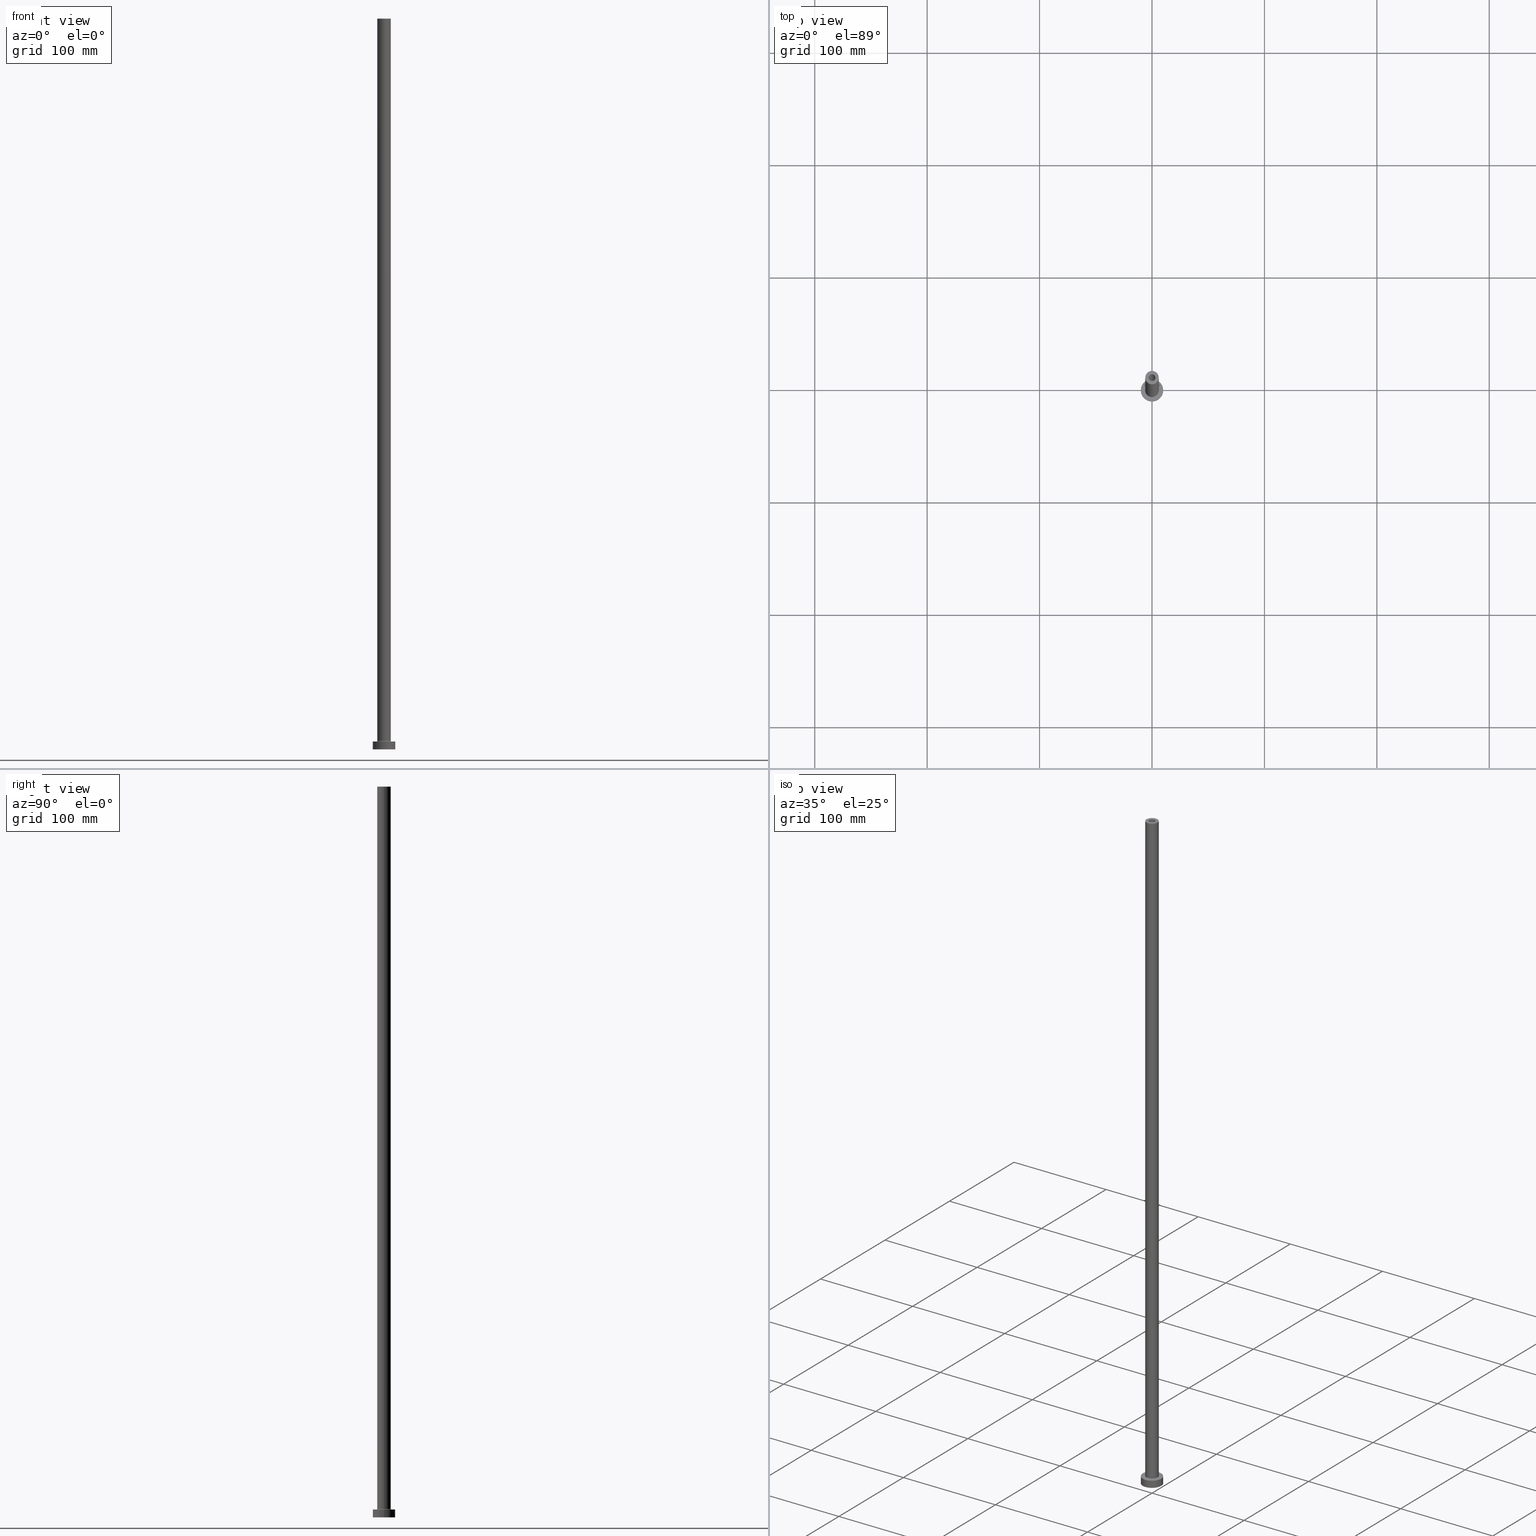
[diagram: canonical four-view strip — front | top / right | iso, engineering-drawing reading convention]
A machine part, canonical four-view strip (front | top / right | iso — engineering-drawing reading convention). The complete STEP part file that produces these views, byte-faithful:
ISO-10303-21;
HEADER;
FILE_DESCRIPTION (( 'STEP AP203' ),
    '1' );
FILE_NAME ('e7e1.STEP',
    '2023-02-13T14:59:17',
    ( '' ),
    ( '' ),
    'SwSTEP 2.0',
    'SolidWorks 2019',
    '' );
FILE_SCHEMA (( 'CONFIG_CONTROL_DESIGN' ));
ENDSEC;

DATA;
#1 = LINE ( 'NONE', #354, #49 ) ;
#2 = CC_DESIGN_PERSON_AND_ORGANIZATION_ASSIGNMENT ( #195, #54, ( #28 ) ) ;
#3 = DIRECTION ( 'NONE',  ( 0.000000000000000000, 0.000000000000000000, -1.000000000000000000 ) ) ;
#4 = APPROVAL ( #279, 'NEUR�EN�' ) ;
#5 = AXIS2_PLACEMENT_3D ( 'NONE', #397, #446, #24 ) ;
#6 = CARTESIAN_POINT ( 'NONE',  ( -6.000000000000000888, 0.000000000000000000, 7.499999999999951150 ) ) ;
#7 = VERTEX_POINT ( 'NONE', #267 ) ;
#8 = ADVANCED_FACE ( 'NONE', ( #301 ), #141, .F. ) ;
#9 = CARTESIAN_POINT ( 'NONE',  ( 0.000000000000000000, 0.000000000000000000, 613.9095454429503889 ) ) ;
#10 = ORIENTED_EDGE ( 'NONE', *, *, #260, .T. ) ;
#11 = VERTEX_POINT ( 'NONE', #367 ) ;
#12 = CARTESIAN_POINT ( 'NONE',  ( 0.000000000000000000, 0.000000000000000000, 605.0000000000000000 ) ) ;
#13 = ORIENTED_EDGE ( 'NONE', *, *, #96, .T. ) ;
#14 = MECHANICAL_CONTEXT ( 'NONE', #25, 'mechanical' ) ;
#15 = AXIS2_PLACEMENT_3D ( 'NONE', #425, #153, #151 ) ;
#16 = CARTESIAN_POINT ( 'NONE',  ( 0.000000000000000000, 0.000000000000000000, 650.0000000000000000 ) ) ;
#17 = CC_DESIGN_SECURITY_CLASSIFICATION ( #393, ( #183 ) ) ;
#18 = ORIENTED_EDGE ( 'NONE', *, *, #294, .T. ) ;
#19 = APPROVAL_DATE_TIME ( #366, #358 ) ;
#20 = CARTESIAN_POINT ( 'NONE',  ( 0.000000000000000000, 0.000000000000000000, 7.499999999999951150 ) ) ;
#21 = ADVANCED_FACE ( 'NONE', ( #59 ), #131, .F. ) ;
#22 = PERSON_AND_ORGANIZATION ( #332, #111 ) ;
#23 = CARTESIAN_POINT ( 'NONE',  ( 0.000000000000000000, 0.000000000000000000, 650.0000000000000000 ) ) ;
#24 = DIRECTION ( 'NONE',  ( 1.000000000000000000, 0.000000000000000000, -0.000000000000000000 ) ) ;
#25 = APPLICATION_CONTEXT ( 'configuration controlled 3d designs of mechanical parts and assemblies' ) ;
#26 = ORIENTED_EDGE ( 'NONE', *, *, #431, .T. ) ;
#27 = CIRCLE ( 'NONE', #156, 3.000000000000000444 ) ;
#28 = PRODUCT_DEFINITION ( 'NEZN�M�', '', #183, #387 ) ;
#29 = CARTESIAN_POINT ( 'NONE',  ( 0.000000000000000000, 0.000000000000000000, 7.499999999999951150 ) ) ;
#30 = VERTEX_POINT ( 'NONE', #401 ) ;
#31 = PLANE ( 'NONE',  #421 ) ;
#32 = DIRECTION ( 'NONE',  ( 0.000000000000000000, 0.000000000000000000, 1.000000000000000000 ) ) ;
#33 = VECTOR ( 'NONE', #155, 1000.000000000000000 ) ;
#34 = ORIENTED_EDGE ( 'NONE', *, *, #456, .T. ) ;
#35 = DIRECTION ( 'NONE',  ( 1.000000000000000000, 0.000000000000000000, 0.000000000000000000 ) ) ;
#36 = EDGE_LOOP ( 'NONE', ( #55, #265, #128, #100 ) ) ;
#37 = DIRECTION ( 'NONE',  ( -1.000000000000000000, 0.000000000000000000, 0.000000000000000000 ) ) ;
#38 = AXIS2_PLACEMENT_3D ( 'NONE', #60, #160, #62 ) ;
#39 = CYLINDRICAL_SURFACE ( 'NONE', #263, 10.00000000000000000 ) ;
#40 = CIRCLE ( 'NONE', #413, 6.000000000000000888 ) ;
#41 = EDGE_CURVE ( 'NONE', #53, #7, #451, .T. ) ;
#42 = LINE ( 'NONE', #290, #33 ) ;
#43 = DIRECTION ( 'NONE',  ( 1.000000000000000000, 0.000000000000000000, 0.000000000000000000 ) ) ;
#44 = EDGE_LOOP ( 'NONE', ( #240, #320, #13, #161 ) ) ;
#45 = CARTESIAN_POINT ( 'NONE',  ( 0.000000000000000000, 0.000000000000000000, 0.000000000000000000 ) ) ;
#46 = MANIFOLD_SOLID_BREP ( 'Odebrat vysunut�m4', #324 ) ;
#47 = ORIENTED_EDGE ( 'NONE', *, *, #449, .F. ) ;
#48 = EDGE_CURVE ( 'NONE', #30, #7, #98, .T. ) ;
#49 = VECTOR ( 'NONE', #147, 1000.000000000000000 ) ;
#50 = UNCERTAINTY_MEASURE_WITH_UNIT (LENGTH_MEASURE( 1.000000000000000082E-05 ), #256, 'distance_accuracy_value', 'NONE');
#51 = DIRECTION ( 'NONE',  ( -0.000000000000000000, -0.000000000000000000, -1.000000000000000000 ) ) ;
#52 = DIRECTION ( 'NONE',  ( 0.000000000000000000, 0.000000000000000000, 1.000000000000000000 ) ) ;
#53 = VERTEX_POINT ( 'NONE', #297 ) ;
#54 = PERSON_AND_ORGANIZATION_ROLE ( 'creator' ) ;
#55 = ORIENTED_EDGE ( 'NONE', *, *, #334, .T. ) ;
#56 = EDGE_CURVE ( 'NONE', #330, #359, #259, .T. ) ;
#57 = CARTESIAN_POINT ( 'NONE',  ( 0.000000000000000000, 0.000000000000000000, 0.000000000000000000 ) ) ;
#58 = CIRCLE ( 'NONE', #328, 0.5000000000000004441 ) ;
#59 = FACE_OUTER_BOUND ( 'NONE', #129, .T. ) ;
#60 = CARTESIAN_POINT ( 'NONE',  ( 0.000000000000000000, 0.000000000000000000, 0.000000000000000000 ) ) ;
#61 = VERTEX_POINT ( 'NONE', #168 ) ;
#62 = DIRECTION ( 'NONE',  ( 1.000000000000000000, 0.000000000000000000, 0.000000000000000000 ) ) ;
#63 = AXIS2_PLACEMENT_3D ( 'NONE', #23, #165, #447 ) ;
#64 = APPLICATION_PROTOCOL_DEFINITION ( 'international standard', 'config_control_design', 1994, #25 ) ;
#65 = DIRECTION ( 'NONE',  ( 0.000000000000000000, 0.000000000000000000, 1.000000000000000000 ) ) ;
#66 = AXIS2_PLACEMENT_3D ( 'NONE', #214, #390, #179 ) ;
#67 = LINE ( 'NONE', #77, #127 ) ;
#68 = ORIENTED_EDGE ( 'NONE', *, *, #302, .T. ) ;
#69 = DIRECTION ( 'NONE',  ( 1.000000000000000000, 0.000000000000000000, 0.000000000000000000 ) ) ;
#70 = CIRCLE ( 'NONE', #238, 6.500000000000000888 ) ;
#71 = EDGE_LOOP ( 'NONE', ( #170, #189 ) ) ;
#72 = EDGE_CURVE ( 'NONE', #422, #109, #70, .T. ) ;
#73 = CARTESIAN_POINT ( 'NONE',  ( 0.000000000000000000, 0.000000000000000000, 7.000000000000000000 ) ) ;
#74 = CIRCLE ( 'NONE', #15, 10.00000000000000000 ) ;
#75 = EDGE_LOOP ( 'NONE', ( #200, #234 ) ) ;
#76 = DIRECTION ( 'NONE',  ( 1.000000000000000000, 0.000000000000000000, 0.000000000000000000 ) ) ;
#77 = CARTESIAN_POINT ( 'NONE',  ( 3.000000000000000444, 3.673940397442060361E-16, 650.0000000000000000 ) ) ;
#78 = EDGE_CURVE ( 'NONE', #439, #11, #298, .T. ) ;
#79 = DIRECTION ( 'NONE',  ( 0.000000000000000000, -1.000000000000000000, 0.000000000000000000 ) ) ;
#80 = AXIS2_PLACEMENT_3D ( 'NONE', #455, #144, #76 ) ;
#81 = LOCAL_TIME ( 15, 59, 17.00000000000000000, #382 ) ;
#82 = LINE ( 'NONE', #288, #391 ) ;
#83 = CARTESIAN_POINT ( 'NONE',  ( 6.000000000000000888, 7.347880794884120722E-16, 650.0000000000000000 ) ) ;
#84 = ORIENTED_EDGE ( 'NONE', *, *, #260, .F. ) ;
#85 = CYLINDRICAL_SURFACE ( 'NONE', #66, 6.000000000000000888 ) ;
#86 = EDGE_LOOP ( 'NONE', ( #325, #396, #274, #203 ) ) ;
#87 = CARTESIAN_POINT ( 'NONE',  ( 0.000000000000000000, 0.000000000000000000, 7.000000000000000000 ) ) ;
#88 = ORIENTED_EDGE ( 'NONE', *, *, #302, .F. ) ;
#89 = DIRECTION ( 'NONE',  ( 0.000000000000000000, 0.000000000000000000, 1.000000000000000000 ) ) ;
#90 = COORDINATED_UNIVERSAL_TIME_OFFSET ( 1, 0, .AHEAD. ) ;
#91 = ORIENTED_EDGE ( 'NONE', *, *, #370, .T. ) ;
#92 = DIRECTION ( 'NONE',  ( 0.000000000000000000, 0.000000000000000000, 1.000000000000000000 ) ) ;
#93 = AXIS2_PLACEMENT_3D ( 'NONE', #115, #79, #246 ) ;
#94 = DIRECTION ( 'NONE',  ( 1.000000000000000000, 0.000000000000000000, 0.000000000000000000 ) ) ;
#95 = COORDINATED_UNIVERSAL_TIME_OFFSET ( 1, 0, .AHEAD. ) ;
#96 = EDGE_CURVE ( 'NONE', #305, #330, #268, .T. ) ;
#97 = DIRECTION ( 'NONE',  ( 1.000000000000000000, 0.000000000000000000, 0.000000000000000000 ) ) ;
#98 = LINE ( 'NONE', #194, #148 ) ;
#99 = PRODUCT ( 'e7e1', 'e7e1', '', ( #14 ) ) ;
#100 = ORIENTED_EDGE ( 'NONE', *, *, #96, .F. ) ;
#101 = DIRECTION ( 'NONE',  ( 1.000000000000000000, 0.000000000000000000, 0.000000000000000000 ) ) ;
#102 = VECTOR ( 'NONE', #210, 1000.000000000000000 ) ;
#103 = ORIENTED_EDGE ( 'NONE', *, *, #150, .F. ) ;
#104 = CARTESIAN_POINT ( 'NONE',  ( 0.000000000000000000, 0.000000000000000000, 613.9095454429503889 ) ) ;
#105 = EDGE_CURVE ( 'NONE', #220, #322, #417, .T. ) ;
#106 = EDGE_LOOP ( 'NONE', ( #251, #10, #264, #438 ) ) ;
#107 = DIRECTION ( 'NONE',  ( 1.000000000000000000, 0.000000000000000000, -0.000000000000000000 ) ) ;
#108 = AXIS2_PLACEMENT_3D ( 'NONE', #404, #196, #94 ) ;
#109 = VERTEX_POINT ( 'NONE', #191 ) ;
#110 = CARTESIAN_POINT ( 'NONE',  ( 0.000000000000000000, 0.000000000000000000, 650.0000000000000000 ) ) ;
#111 = ORGANIZATION ( 'NEUR�EN�', 'NEUR�EN�', '' ) ;
#112 = DIRECTION ( 'NONE',  ( 0.000000000000000000, 0.000000000000000000, 1.000000000000000000 ) ) ;
#113 = ADVANCED_FACE ( 'NONE', ( #306 ), #411, .T. ) ;
#114 = CARTESIAN_POINT ( 'NONE',  ( -6.500000000000000888, 7.960204194457796463E-16, 7.499999999999951150 ) ) ;
#115 = CARTESIAN_POINT ( 'NONE',  ( 6.500000000000000888, 0.000000000000000000, 7.499999999999951150 ) ) ;
#116 = AXIS2_PLACEMENT_3D ( 'NONE', #173, #457, #243 ) ;
#117 = DIRECTION ( 'NONE',  ( 0.000000000000000000, 0.000000000000000000, -1.000000000000000000 ) ) ;
#118 = FACE_OUTER_BOUND ( 'NONE', #187, .T. ) ;
#119 = FACE_OUTER_BOUND ( 'NONE', #373, .T. ) ;
#120 = CIRCLE ( 'NONE', #177, 3.150000000000000355 ) ;
#121 = CARTESIAN_POINT ( 'NONE',  ( 0.000000000000000000, 0.000000000000000000, 605.0000000000000000 ) ) ;
#122 = LINE ( 'NONE', #369, #319 ) ;
#123 = DIRECTION ( 'NONE',  ( 0.000000000000000000, 0.000000000000000000, -1.000000000000000000 ) ) ;
#124 = SECURITY_CLASSIFICATION_LEVEL ( 'unclassified' ) ;
#125 = ORIENTED_EDGE ( 'NONE', *, *, #402, .F. ) ;
#126 = DATE_TIME_ROLE ( 'creation_date' ) ;
#127 = VECTOR ( 'NONE', #176, 1000.000000000000000 ) ;
#128 = ORIENTED_EDGE ( 'NONE', *, *, #56, .F. ) ;
#129 = EDGE_LOOP ( 'NONE', ( #84, #232, #258, #132 ) ) ;
#130 = CARTESIAN_POINT ( 'NONE',  ( -3.000000000000000444, 0.000000000000000000, 650.0000000000000000 ) ) ;
#131 = TOROIDAL_SURFACE ( 'NONE', #389, 6.500000000000000888, 0.5000000000000000000 ) ;
#132 = ORIENTED_EDGE ( 'NONE', *, *, #72, .F. ) ;
#133 = PLANE ( 'NONE',  #276 ) ;
#134 = AXIS2_PLACEMENT_3D ( 'NONE', #12, #52, #285 ) ;
#135 = LOCAL_TIME ( 15, 59, 17.00000000000000000, #190 ) ;
#136 = CC_DESIGN_DATE_AND_TIME_ASSIGNMENT ( #327, #126, ( #28 ) ) ;
#137 = APPLICATION_CONTEXT ( 'configuration controlled 3d designs of mechanical parts and assemblies' ) ;
#138 = VERTEX_POINT ( 'NONE', #209 ) ;
#139 = DIRECTION ( 'NONE',  ( 1.224646799147353207E-16, 1.000000000000000000, -0.000000000000000000 ) ) ;
#140 = CARTESIAN_POINT ( 'NONE',  ( -10.00000000000000000, 0.000000000000000000, 7.000000000000000000 ) ) ;
#141 = TOROIDAL_SURFACE ( 'NONE', #284, 6.500000000000000888, 0.5000000000000000000 ) ;
#142 = EDGE_LOOP ( 'NONE', ( #236, #182 ) ) ;
#143 = ADVANCED_FACE ( 'NONE', ( #348, #424 ), #133, .T. ) ;
#144 = DIRECTION ( 'NONE',  ( 0.000000000000000000, 0.000000000000000000, 1.000000000000000000 ) ) ;
#145 = AXIS2_PLACEMENT_3D ( 'NONE', #410, #89, #97 ) ;
#146 = DIRECTION ( 'NONE',  ( -1.000000000000000000, 0.000000000000000000, 0.000000000000000000 ) ) ;
#147 = DIRECTION ( 'NONE',  ( -0.000000000000000000, -0.000000000000000000, -1.000000000000000000 ) ) ;
#148 = VECTOR ( 'NONE', #123, 1000.000000000000000 ) ;
#149 = DIRECTION ( 'NONE',  ( 0.000000000000000000, 0.000000000000000000, -1.000000000000000000 ) ) ;
#150 = EDGE_CURVE ( 'NONE', #220, #356, #282, .T. ) ;
#151 = DIRECTION ( 'NONE',  ( 1.000000000000000000, 0.000000000000000000, 0.000000000000000000 ) ) ;
#152 = VERTEX_POINT ( 'NONE', #383 ) ;
#153 = DIRECTION ( 'NONE',  ( 0.000000000000000000, 0.000000000000000000, 1.000000000000000000 ) ) ;
#154 = APPROVAL ( #448, 'NEUR�EN�' ) ;
#155 = DIRECTION ( 'NONE',  ( -0.000000000000000000, -0.000000000000000000, -1.000000000000000000 ) ) ;
#156 = AXIS2_PLACEMENT_3D ( 'NONE', #178, #291, #43 ) ;
#157 = EDGE_LOOP ( 'NONE', ( #346, #303 ) ) ;
#158 = APPLICATION_PROTOCOL_DEFINITION ( 'international standard', 'config_control_design', 1994, #137 ) ;
#159 = CC_DESIGN_PERSON_AND_ORGANIZATION_ASSIGNMENT ( #296, #304, ( #183 ) ) ;
#160 = DIRECTION ( 'NONE',  ( -0.000000000000000000, -0.000000000000000000, -1.000000000000000000 ) ) ;
#161 = ORIENTED_EDGE ( 'NONE', *, *, #370, .F. ) ;
#162 = PERSON_AND_ORGANIZATION ( #332, #111 ) ;
#163 = VECTOR ( 'NONE', #231, 1000.000000000000000 ) ;
#164 = CALENDAR_DATE ( 2023, 13, 2 ) ;
#165 = DIRECTION ( 'NONE',  ( 0.000000000000000000, 0.000000000000000000, 1.000000000000000000 ) ) ;
#166 = ORIENTED_EDGE ( 'NONE', *, *, #48, .F. ) ;
#167 = CIRCLE ( 'NONE', #93, 0.5000000000000004441 ) ;
#168 = CARTESIAN_POINT ( 'NONE',  ( 6.000000000000000888, 7.347880794884120722E-16, 7.499999999999951150 ) ) ;
#169 = DIRECTION ( 'NONE',  ( 1.000000000000000000, 0.000000000000000000, 0.000000000000000000 ) ) ;
#170 = ORIENTED_EDGE ( 'NONE', *, *, #334, .F. ) ;
#171 = DIRECTION ( 'NONE',  ( 1.000000000000000000, 0.000000000000000000, -0.000000000000000000 ) ) ;
#172 = CARTESIAN_POINT ( 'NONE',  ( 0.000000000000000000, 0.000000000000000000, 650.0000000000000000 ) ) ;
#173 = CARTESIAN_POINT ( 'NONE',  ( 0.000000000000000000, 0.000000000000000000, 0.000000000000000000 ) ) ;
#174 = CARTESIAN_POINT ( 'NONE',  ( 0.000000000000000000, 0.000000000000000000, 0.000000000000000000 ) ) ;
#175 = AXIS2_PLACEMENT_3D ( 'NONE', #376, #65, #169 ) ;
#176 = DIRECTION ( 'NONE',  ( 0.000000000000000000, 0.000000000000000000, -1.000000000000000000 ) ) ;
#177 = AXIS2_PLACEMENT_3D ( 'NONE', #201, #416, #69 ) ;
#178 = CARTESIAN_POINT ( 'NONE',  ( 0.000000000000000000, 0.000000000000000000, 650.0000000000000000 ) ) ;
#179 = DIRECTION ( 'NONE',  ( -1.000000000000000000, 0.000000000000000000, 0.000000000000000000 ) ) ;
#180 = EDGE_CURVE ( 'NONE', #379, #61, #270, .T. ) ;
#181 = CARTESIAN_POINT ( 'NONE',  ( 3.000000000000000444, 3.673940397442060361E-16, 605.0000000000000000 ) ) ;
#182 = ORIENTED_EDGE ( 'NONE', *, *, #72, .T. ) ;
#183 = PRODUCT_DEFINITION_FORMATION_WITH_SPECIFIED_SOURCE ( 'LIBOVOLN�', '', #99, .NOT_KNOWN. ) ;
#184 = CARTESIAN_POINT ( 'NONE',  ( -3.150000000000000355, 0.000000000000000000, 605.0000000000000000 ) ) ;
#185 = ORIENTED_EDGE ( 'NONE', *, *, #224, .T. ) ;
#186 = EDGE_CURVE ( 'NONE', #138, #356, #248, .T. ) ;
#187 = EDGE_LOOP ( 'NONE', ( #208, #88 ) ) ;
#188 = DIRECTION ( 'NONE',  ( 1.000000000000000000, 0.000000000000000000, 0.000000000000000000 ) ) ;
#189 = ORIENTED_EDGE ( 'NONE', *, *, #207, .F. ) ;
#190 = COORDINATED_UNIVERSAL_TIME_OFFSET ( 1, 0, .AHEAD. ) ;
#191 = CARTESIAN_POINT ( 'NONE',  ( 6.500000000000000888, 0.000000000000000000, 6.999999999999975131 ) ) ;
#192 = AXIS2_PLACEMENT_3D ( 'NONE', #353, #112, #202 ) ;
#193 = ORIENTED_EDGE ( 'NONE', *, *, #41, .T. ) ;
#194 = CARTESIAN_POINT ( 'NONE',  ( 3.150000000000000355, 3.857637417314163182E-16, 613.9095454429503889 ) ) ;
#195 = PERSON_AND_ORGANIZATION ( #332, #111 ) ;
#196 = DIRECTION ( 'NONE',  ( 0.000000000000000000, 0.000000000000000000, 1.000000000000000000 ) ) ;
#197 = EDGE_LOOP ( 'NONE', ( #185, #278, #26, #125 ) ) ;
#198 = LOCAL_TIME ( 15, 59, 17.00000000000000000, #329 ) ;
#199 = LOCAL_TIME ( 15, 59, 17.00000000000000000, #90 ) ;
#200 = ORIENTED_EDGE ( 'NONE', *, *, #456, .F. ) ;
#201 = CARTESIAN_POINT ( 'NONE',  ( 0.000000000000000000, 0.000000000000000000, 605.0000000000000000 ) ) ;
#202 = DIRECTION ( 'NONE',  ( 1.000000000000000000, 0.000000000000000000, 0.000000000000000000 ) ) ;
#203 = ORIENTED_EDGE ( 'NONE', *, *, #180, .T. ) ;
#204 = DATE_AND_TIME ( #228, #460 ) ;
#205 = CIRCLE ( 'NONE', #223, 3.150000000000000355 ) ;
#206 = DIRECTION ( 'NONE',  ( -0.000000000000000000, -0.000000000000000000, -1.000000000000000000 ) ) ;
#207 = EDGE_CURVE ( 'NONE', #152, #305, #361, .T. ) ;
#208 = ORIENTED_EDGE ( 'NONE', *, *, #224, .F. ) ;
#209 = CARTESIAN_POINT ( 'NONE',  ( 10.00000000000000000, 1.224646799147353256E-15, 0.000000000000000000 ) ) ;
#210 = DIRECTION ( 'NONE',  ( -0.000000000000000000, -0.000000000000000000, -1.000000000000000000 ) ) ;
#211 = CARTESIAN_POINT ( 'NONE',  ( 0.000000000000000000, 0.000000000000000000, 650.0000000000000000 ) ) ;
#212 = ADVANCED_FACE ( 'NONE', ( #281, #312 ), #277, .F. ) ;
#213 = FACE_OUTER_BOUND ( 'NONE', #44, .T. ) ;
#214 = CARTESIAN_POINT ( 'NONE',  ( 0.000000000000000000, 0.000000000000000000, 650.0000000000000000 ) ) ;
#215 = EDGE_LOOP ( 'NONE', ( #47, #381, #442, #34 ) ) ;
#216 = CYLINDRICAL_SURFACE ( 'NONE', #308, 10.00000000000000000 ) ;
#217 = ADVANCED_FACE ( 'NONE', ( #244 ), #39, .T. ) ;
#218 = AXIS2_PLACEMENT_3D ( 'NONE', #73, #206, #35 ) ;
#219 = FACE_OUTER_BOUND ( 'NONE', #336, .T. ) ;
#220 = VERTEX_POINT ( 'NONE', #314 ) ;
#221 = APPROVAL_ROLE ( '' ) ;
#222 = CALENDAR_DATE ( 2023, 13, 2 ) ;
#223 = AXIS2_PLACEMENT_3D ( 'NONE', #45, #395, #318 ) ;
#224 = EDGE_CURVE ( 'NONE', #406, #30, #120, .T. ) ;
#225 = CALENDAR_DATE ( 2023, 13, 2 ) ;
#226 = CARTESIAN_POINT ( 'NONE',  ( 0.000000000000000000, 0.000000000000000000, 7.000000000000000000 ) ) ;
#227 = EDGE_LOOP ( 'NONE', ( #365, #269, #414, #429 ) ) ;
#228 = CALENDAR_DATE ( 2023, 13, 2 ) ;
#229 = DIRECTION ( 'NONE',  ( 1.000000000000000000, 0.000000000000000000, 0.000000000000000000 ) ) ;
#230 = DATE_AND_TIME ( #225, #198 ) ;
#231 = DIRECTION ( 'NONE',  ( 0.000000000000000000, 0.000000000000000000, -1.000000000000000000 ) ) ;
#232 = ORIENTED_EDGE ( 'NONE', *, *, #363, .F. ) ;
#233 = CC_DESIGN_PERSON_AND_ORGANIZATION_ASSIGNMENT ( #162, #300, ( #183 ) ) ;
#234 = ORIENTED_EDGE ( 'NONE', *, *, #186, .F. ) ;
#235 = FACE_OUTER_BOUND ( 'NONE', #36, .T. ) ;
#236 = ORIENTED_EDGE ( 'NONE', *, *, #287, .T. ) ;
#237 = EDGE_CURVE ( 'NONE', #152, #359, #67, .T. ) ;
#238 = AXIS2_PLACEMENT_3D ( 'NONE', #226, #333, #101 ) ;
#239 = FACE_OUTER_BOUND ( 'NONE', #197, .T. ) ;
#240 = ORIENTED_EDGE ( 'NONE', *, *, #237, .F. ) ;
#241 = CIRCLE ( 'NONE', #134, 3.000000000000000444 ) ;
#242 = DIRECTION ( 'NONE',  ( 0.000000000000000000, 0.000000000000000000, 1.000000000000000000 ) ) ;
#243 = DIRECTION ( 'NONE',  ( 1.000000000000000000, 0.000000000000000000, -0.000000000000000000 ) ) ;
#244 = FACE_OUTER_BOUND ( 'NONE', #215, .T. ) ;
#245 = ADVANCED_FACE ( 'NONE', ( #239 ), #307, .F. ) ;
#246 = DIRECTION ( 'NONE',  ( 0.000000000000000000, 0.000000000000000000, -1.000000000000000000 ) ) ;
#247 = AXIS2_PLACEMENT_3D ( 'NONE', #110, #242, #435 ) ;
#248 = CIRCLE ( 'NONE', #459, 10.00000000000000000 ) ;
#249 = APPROVAL_PERSON_ORGANIZATION ( #400, #358, #437 ) ;
#250 = CARTESIAN_POINT ( 'NONE',  ( -6.500000000000000888, 7.960204194457796463E-16, 6.999999999999975131 ) ) ;
#251 = ORIENTED_EDGE ( 'NONE', *, *, #180, .F. ) ;
#252 = PLANE ( 'NONE',  #5 ) ;
#253 = CYLINDRICAL_SURFACE ( 'NONE', #426, 3.000000000000000444 ) ;
#254 = CIRCLE ( 'NONE', #218, 6.500000000000000888 ) ;
#255 = ORIENTED_EDGE ( 'NONE', *, *, #449, .T. ) ;
#256 =( LENGTH_UNIT ( ) NAMED_UNIT ( * ) SI_UNIT ( .MILLI., .METRE. ) );
#257 = PERSON_AND_ORGANIZATION ( #332, #111 ) ;
#258 = ORIENTED_EDGE ( 'NONE', *, *, #394, .T. ) ;
#259 = CIRCLE ( 'NONE', #108, 3.000000000000000444 ) ;
#260 = EDGE_CURVE ( 'NONE', #379, #422, #58, .T. ) ;
#261 = PERSON_AND_ORGANIZATION ( #332, #111 ) ;
#262 = ORIENTED_EDGE ( 'NONE', *, *, #402, .T. ) ;
#263 = AXIS2_PLACEMENT_3D ( 'NONE', #388, #344, #37 ) ;
#264 = ORIENTED_EDGE ( 'NONE', *, *, #287, .F. ) ;
#265 = ORIENTED_EDGE ( 'NONE', *, *, #237, .T. ) ;
#266 = ADVANCED_FACE ( 'NONE', ( #420, #342 ), #31, .T. ) ;
#267 = CARTESIAN_POINT ( 'NONE',  ( 3.150000000000000355, 3.857637417314163182E-16, 0.000000000000000000 ) ) ;
#268 = LINE ( 'NONE', #130, #163 ) ;
#269 = ORIENTED_EDGE ( 'NONE', *, *, #317, .T. ) ;
#270 = CIRCLE ( 'NONE', #192, 6.000000000000000888 ) ;
#271 = DIRECTION ( 'NONE',  ( 0.000000000000000000, 0.000000000000000000, 1.000000000000000000 ) ) ;
#272 = DIRECTION ( 'NONE',  ( -1.000000000000000000, 0.000000000000000000, 0.000000000000000000 ) ) ;
#273 = ADVANCED_FACE ( 'NONE', ( #235 ), #452, .F. ) ;
#274 = ORIENTED_EDGE ( 'NONE', *, *, #310, .T. ) ;
#275 = APPROVAL_ROLE ( '' ) ;
#276 = AXIS2_PLACEMENT_3D ( 'NONE', #461, #271, #107 ) ;
#277 = PLANE ( 'NONE',  #116 ) ;
#278 = ORIENTED_EDGE ( 'NONE', *, *, #48, .T. ) ;
#279 = APPROVAL_STATUS ( 'not_yet_approved' ) ;
#280 = CIRCLE ( 'NONE', #292, 10.00000000000000000 ) ;
#281 = FACE_BOUND ( 'NONE', #157, .T. ) ;
#282 = LINE ( 'NONE', #140, #102 ) ;
#283 = CARTESIAN_POINT ( 'NONE',  ( 0.000000000000000000, 0.000000000000000000, 7.499999999999951150 ) ) ;
#284 = AXIS2_PLACEMENT_3D ( 'NONE', #29, #409, #229 ) ;
#285 = DIRECTION ( 'NONE',  ( 1.000000000000000000, 0.000000000000000000, 0.000000000000000000 ) ) ;
#286 = CC_DESIGN_APPROVAL ( #154, ( #28 ) ) ;
#287 = EDGE_CURVE ( 'NONE', #109, #422, #254, .T. ) ;
#288 = CARTESIAN_POINT ( 'NONE',  ( -3.150000000000000355, 0.000000000000000000, 613.9095454429503889 ) ) ;
#289 = EDGE_LOOP ( 'NONE', ( #18, #339 ) ) ;
#290 = CARTESIAN_POINT ( 'NONE',  ( 6.000000000000000888, 7.347880794884120722E-16, 650.0000000000000000 ) ) ;
#291 = DIRECTION ( 'NONE',  ( 0.000000000000000000, 0.000000000000000000, 1.000000000000000000 ) ) ;
#292 = AXIS2_PLACEMENT_3D ( 'NONE', #57, #92, #372 ) ;
#293 = ORIENTED_EDGE ( 'NONE', *, *, #186, .T. ) ;
#294 = EDGE_CURVE ( 'NONE', #11, #439, #345, .T. ) ;
#295 = EDGE_LOOP ( 'NONE', ( #445, #340 ) ) ;
#296 = PERSON_AND_ORGANIZATION ( #332, #111 ) ;
#297 = CARTESIAN_POINT ( 'NONE',  ( -3.150000000000000355, 0.000000000000000000, 0.000000000000000000 ) ) ;
#298 = CIRCLE ( 'NONE', #63, 6.000000000000000888 ) ;
#299 = PRODUCT_DEFINITION_SHAPE ( 'NONE', 'NONE',  #28 ) ;
#300 = PERSON_AND_ORGANIZATION_ROLE ( 'creator' ) ;
#301 = FACE_OUTER_BOUND ( 'NONE', #106, .T. ) ;
#302 = EDGE_CURVE ( 'NONE', #30, #406, #377, .T. ) ;
#303 = ORIENTED_EDGE ( 'NONE', *, *, #431, .F. ) ;
#304 = PERSON_AND_ORGANIZATION_ROLE ( 'design_supplier' ) ;
#305 = VERTEX_POINT ( 'NONE', #392 ) ;
#306 = FACE_OUTER_BOUND ( 'NONE', #86, .T. ) ;
#307 = CYLINDRICAL_SURFACE ( 'NONE', #453, 3.150000000000000355 ) ;
#308 = AXIS2_PLACEMENT_3D ( 'NONE', #87, #51, #316 ) ;
#309 = DIRECTION ( 'NONE',  ( 0.000000000000000000, 0.000000000000000000, -1.000000000000000000 ) ) ;
#310 = EDGE_CURVE ( 'NONE', #11, #379, #1, .T. ) ;
#311 = DIRECTION ( 'NONE',  ( 0.000000000000000000, 0.000000000000000000, 1.000000000000000000 ) ) ;
#312 = FACE_OUTER_BOUND ( 'NONE', #75, .T. ) ;
#313 = PERSON_AND_ORGANIZATION ( #332, #111 ) ;
#314 = CARTESIAN_POINT ( 'NONE',  ( -10.00000000000000000, 0.000000000000000000, 7.000000000000000000 ) ) ;
#315 = FACE_OUTER_BOUND ( 'NONE', #227, .T. ) ;
#316 = DIRECTION ( 'NONE',  ( -1.000000000000000000, 0.000000000000000000, 0.000000000000000000 ) ) ;
#317 = EDGE_CURVE ( 'NONE', #439, #61, #42, .T. ) ;
#318 = DIRECTION ( 'NONE',  ( 1.000000000000000000, 0.000000000000000000, 0.000000000000000000 ) ) ;
#319 = VECTOR ( 'NONE', #375, 1000.000000000000000 ) ;
#320 = ORIENTED_EDGE ( 'NONE', *, *, #207, .T. ) ;
#321 = DIRECTION ( 'NONE',  ( -1.000000000000000000, 0.000000000000000000, 0.000000000000000000 ) ) ;
#322 = VERTEX_POINT ( 'NONE', #430 ) ;
#323 = DIRECTION ( 'NONE',  ( 1.000000000000000000, 0.000000000000000000, 0.000000000000000000 ) ) ;
#324 = CLOSED_SHELL ( 'NONE', ( #273, #245, #8, #351, #380, #217, #143, #212, #113, #266, #21, #419, #440, #412 ) ) ;
#325 = ORIENTED_EDGE ( 'NONE', *, *, #317, .F. ) ;
#326 = CC_DESIGN_PERSON_AND_ORGANIZATION_ASSIGNMENT ( #257, #441, ( #99 ) ) ;
#327 = DATE_AND_TIME ( #164, #135 ) ;
#328 = AXIS2_PLACEMENT_3D ( 'NONE', #114, #139, #415 ) ;
#329 = COORDINATED_UNIVERSAL_TIME_OFFSET ( 1, 0, .AHEAD. ) ;
#330 = VERTEX_POINT ( 'NONE', #398 ) ;
#331 =( NAMED_UNIT ( * ) PLANE_ANGLE_UNIT ( ) SI_UNIT ( $, .RADIAN. ) );
#332 = PERSON ( 'NEUR�EN�', 'NEUR�EN�', 'NEUR�EN�', ('NEUR�EN�'), ('NEUR�EN�'), ('NEUR�EN�') ) ;
#333 = DIRECTION ( 'NONE',  ( -0.000000000000000000, -0.000000000000000000, -1.000000000000000000 ) ) ;
#334 = EDGE_CURVE ( 'NONE', #305, #152, #27, .T. ) ;
#335 =( NAMED_UNIT ( * ) SI_UNIT ( $, .STERADIAN. ) SOLID_ANGLE_UNIT ( ) );
#336 = EDGE_LOOP ( 'NONE', ( #166, #68, #262, #193 ) ) ;
#337 = AXIS2_PLACEMENT_3D ( 'NONE', #172, #309, #272 ) ;
#338 = APPROVAL_DATE_TIME ( #230, #154 ) ;
#339 = ORIENTED_EDGE ( 'NONE', *, *, #78, .T. ) ;
#340 = ORIENTED_EDGE ( 'NONE', *, *, #386, .T. ) ;
#341 = CALENDAR_DATE ( 2023, 13, 2 ) ;
#342 = FACE_OUTER_BOUND ( 'NONE', #289, .T. ) ;
#343 = EDGE_LOOP ( 'NONE', ( #434, #91 ) ) ;
#344 = DIRECTION ( 'NONE',  ( -0.000000000000000000, -0.000000000000000000, -1.000000000000000000 ) ) ;
#345 = CIRCLE ( 'NONE', #247, 6.000000000000000888 ) ;
#346 = ORIENTED_EDGE ( 'NONE', *, *, #41, .F. ) ;
#347 = SHAPE_DEFINITION_REPRESENTATION ( #299, #418 ) ;
#348 = FACE_BOUND ( 'NONE', #142, .T. ) ;
#349 = APPROVAL_DATE_TIME ( #352, #4 ) ;
#350 = DIRECTION ( 'NONE',  ( 1.000000000000000000, 0.000000000000000000, 0.000000000000000000 ) ) ;
#351 = ADVANCED_FACE ( 'NONE', ( #315 ), #85, .T. ) ;
#352 = DATE_AND_TIME ( #341, #81 ) ;
#353 = CARTESIAN_POINT ( 'NONE',  ( 0.000000000000000000, 0.000000000000000000, 7.499999999999951150 ) ) ;
#354 = CARTESIAN_POINT ( 'NONE',  ( -6.000000000000000888, 0.000000000000000000, 650.0000000000000000 ) ) ;
#355 = DIRECTION ( 'NONE',  ( 0.000000000000000000, 0.000000000000000000, 1.000000000000000000 ) ) ;
#356 = VERTEX_POINT ( 'NONE', #432 ) ;
#357 = FACE_BOUND ( 'NONE', #343, .T. ) ;
#358 = APPROVAL ( #408, 'NEUR�EN�' ) ;
#359 = VERTEX_POINT ( 'NONE', #181 ) ;
#360 = DIRECTION ( 'NONE',  ( 0.000000000000000000, 0.000000000000000000, 1.000000000000000000 ) ) ;
#361 = CIRCLE ( 'NONE', #80, 3.000000000000000444 ) ;
#362 = DIRECTION ( 'NONE',  ( -1.000000000000000000, 0.000000000000000000, 0.000000000000000000 ) ) ;
#363 = EDGE_CURVE ( 'NONE', #61, #379, #40, .T. ) ;
#364 = CC_DESIGN_DATE_AND_TIME_ASSIGNMENT ( #204, #378, ( #393 ) ) ;
#365 = ORIENTED_EDGE ( 'NONE', *, *, #78, .F. ) ;
#366 = DATE_AND_TIME ( #222, #199 ) ;
#367 = CARTESIAN_POINT ( 'NONE',  ( -6.000000000000000888, 0.000000000000000000, 650.0000000000000000 ) ) ;
#368 = AXIS2_PLACEMENT_3D ( 'NONE', #121, #355, #323 ) ;
#369 = CARTESIAN_POINT ( 'NONE',  ( 10.00000000000000000, 1.224646799147353256E-15, 7.000000000000000000 ) ) ;
#370 = EDGE_CURVE ( 'NONE', #359, #330, #241, .T. ) ;
#371 = DIRECTION ( 'NONE',  ( 0.000000000000000000, 0.000000000000000000, 1.000000000000000000 ) ) ;
#372 = DIRECTION ( 'NONE',  ( 1.000000000000000000, 0.000000000000000000, 0.000000000000000000 ) ) ;
#373 = EDGE_LOOP ( 'NONE', ( #436, #255, #293, #103 ) ) ;
#374 = PRODUCT_RELATED_PRODUCT_CATEGORY ( 'detail', '', ( #99 ) ) ;
#375 = DIRECTION ( 'NONE',  ( -0.000000000000000000, -0.000000000000000000, -1.000000000000000000 ) ) ;
#376 = CARTESIAN_POINT ( 'NONE',  ( 0.000000000000000000, 0.000000000000000000, 7.000000000000000000 ) ) ;
#377 = CIRCLE ( 'NONE', #368, 3.150000000000000355 ) ;
#378 = DATE_TIME_ROLE ( 'classification_date' ) ;
#379 = VERTEX_POINT ( 'NONE', #6 ) ;
#380 = ADVANCED_FACE ( 'NONE', ( #119 ), #216, .T. ) ;
#381 = ORIENTED_EDGE ( 'NONE', *, *, #105, .F. ) ;
#382 = COORDINATED_UNIVERSAL_TIME_OFFSET ( 1, 0, .AHEAD. ) ;
#383 = CARTESIAN_POINT ( 'NONE',  ( 3.000000000000000444, 3.673940397442060361E-16, 650.0000000000000000 ) ) ;
#384 = DIRECTION ( 'NONE',  ( 0.000000000000000000, 0.000000000000000000, -1.000000000000000000 ) ) ;
#385 = DIRECTION ( 'NONE',  ( -0.000000000000000000, -0.000000000000000000, -1.000000000000000000 ) ) ;
#386 = EDGE_CURVE ( 'NONE', #322, #220, #74, .T. ) ;
#387 = DESIGN_CONTEXT ( 'detailed design', #137, 'design' ) ;
#388 = CARTESIAN_POINT ( 'NONE',  ( 0.000000000000000000, 0.000000000000000000, 7.000000000000000000 ) ) ;
#389 = AXIS2_PLACEMENT_3D ( 'NONE', #20, #371, #450 ) ;
#390 = DIRECTION ( 'NONE',  ( -0.000000000000000000, -0.000000000000000000, -1.000000000000000000 ) ) ;
#391 = VECTOR ( 'NONE', #3, 1000.000000000000000 ) ;
#392 = CARTESIAN_POINT ( 'NONE',  ( -3.000000000000000444, 0.000000000000000000, 650.0000000000000000 ) ) ;
#393 = SECURITY_CLASSIFICATION ( '', '', #124 ) ;
#394 = EDGE_CURVE ( 'NONE', #61, #109, #167, .T. ) ;
#395 = DIRECTION ( 'NONE',  ( -0.000000000000000000, -0.000000000000000000, -1.000000000000000000 ) ) ;
#396 = ORIENTED_EDGE ( 'NONE', *, *, #294, .F. ) ;
#397 = CARTESIAN_POINT ( 'NONE',  ( 0.000000000000000000, 0.000000000000000000, 605.0000000000000000 ) ) ;
#398 = CARTESIAN_POINT ( 'NONE',  ( -3.000000000000000444, 0.000000000000000000, 605.0000000000000000 ) ) ;
#399 = APPROVAL_PERSON_ORGANIZATION ( #22, #154, #221 ) ;
#400 = PERSON_AND_ORGANIZATION ( #332, #111 ) ;
#401 = CARTESIAN_POINT ( 'NONE',  ( 3.150000000000000355, 3.857637417314163182E-16, 605.0000000000000000 ) ) ;
#402 = EDGE_CURVE ( 'NONE', #406, #53, #82, .T. ) ;
#403 = PERSON_AND_ORGANIZATION_ROLE ( 'classification_officer' ) ;
#404 = CARTESIAN_POINT ( 'NONE',  ( 0.000000000000000000, 0.000000000000000000, 605.0000000000000000 ) ) ;
#405 = AXIS2_PLACEMENT_3D ( 'NONE', #9, #117, #362 ) ;
#406 = VERTEX_POINT ( 'NONE', #184 ) ;
#407 = CC_DESIGN_PERSON_AND_ORGANIZATION_ASSIGNMENT ( #261, #403, ( #393 ) ) ;
#408 = APPROVAL_STATUS ( 'not_yet_approved' ) ;
#409 = DIRECTION ( 'NONE',  ( 0.000000000000000000, 0.000000000000000000, 1.000000000000000000 ) ) ;
#410 = CARTESIAN_POINT ( 'NONE',  ( 0.000000000000000000, 0.000000000000000000, 0.000000000000000000 ) ) ;
#411 = CYLINDRICAL_SURFACE ( 'NONE', #433, 6.000000000000000888 ) ;
#412 = ADVANCED_FACE ( 'NONE', ( #213 ), #253, .F. ) ;
#413 = AXIS2_PLACEMENT_3D ( 'NONE', #283, #360, #188 ) ;
#414 = ORIENTED_EDGE ( 'NONE', *, *, #363, .T. ) ;
#415 = DIRECTION ( 'NONE',  ( -1.000000000000000000, 1.224646799147351482E-16, 0.000000000000000000 ) ) ;
#416 = DIRECTION ( 'NONE',  ( 0.000000000000000000, 0.000000000000000000, 1.000000000000000000 ) ) ;
#417 = CIRCLE ( 'NONE', #175, 10.00000000000000000 ) ;
#418 = ADVANCED_BREP_SHAPE_REPRESENTATION ( 'e7e1', ( #46, #145 ), #443 ) ;
#419 = ADVANCED_FACE ( 'NONE', ( #219 ), #428, .F. ) ;
#420 = FACE_BOUND ( 'NONE', #71, .T. ) ;
#421 = AXIS2_PLACEMENT_3D ( 'NONE', #458, #32, #171 ) ;
#422 = VERTEX_POINT ( 'NONE', #250 ) ;
#423 = DIRECTION ( 'NONE',  ( -1.000000000000000000, 0.000000000000000000, 0.000000000000000000 ) ) ;
#424 = FACE_OUTER_BOUND ( 'NONE', #295, .T. ) ;
#425 = CARTESIAN_POINT ( 'NONE',  ( 0.000000000000000000, 0.000000000000000000, 7.000000000000000000 ) ) ;
#426 = AXIS2_PLACEMENT_3D ( 'NONE', #211, #149, #321 ) ;
#427 = CC_DESIGN_APPROVAL ( #358, ( #183 ) ) ;
#428 = CYLINDRICAL_SURFACE ( 'NONE', #405, 3.150000000000000355 ) ;
#429 = ORIENTED_EDGE ( 'NONE', *, *, #310, .F. ) ;
#430 = CARTESIAN_POINT ( 'NONE',  ( 10.00000000000000000, 1.224646799147353256E-15, 7.000000000000000000 ) ) ;
#431 = EDGE_CURVE ( 'NONE', #7, #53, #205, .T. ) ;
#432 = CARTESIAN_POINT ( 'NONE',  ( -10.00000000000000000, 0.000000000000000000, 0.000000000000000000 ) ) ;
#433 = AXIS2_PLACEMENT_3D ( 'NONE', #16, #385, #423 ) ;
#434 = ORIENTED_EDGE ( 'NONE', *, *, #56, .T. ) ;
#435 = DIRECTION ( 'NONE',  ( 1.000000000000000000, 0.000000000000000000, 0.000000000000000000 ) ) ;
#436 = ORIENTED_EDGE ( 'NONE', *, *, #386, .F. ) ;
#437 = APPROVAL_ROLE ( '' ) ;
#438 = ORIENTED_EDGE ( 'NONE', *, *, #394, .F. ) ;
#439 = VERTEX_POINT ( 'NONE', #83 ) ;
#440 = ADVANCED_FACE ( 'NONE', ( #357, #118 ), #252, .F. ) ;
#441 = PERSON_AND_ORGANIZATION_ROLE ( 'design_owner' ) ;
#442 = ORIENTED_EDGE ( 'NONE', *, *, #150, .T. ) ;
#443 =( GEOMETRIC_REPRESENTATION_CONTEXT ( 3 ) GLOBAL_UNCERTAINTY_ASSIGNED_CONTEXT ( ( #50 ) ) GLOBAL_UNIT_ASSIGNED_CONTEXT ( ( #256, #331, #335 ) ) REPRESENTATION_CONTEXT ( 'NONE', 'WORKASPACE' ) );
#444 = APPROVAL_PERSON_ORGANIZATION ( #313, #4, #275 ) ;
#445 = ORIENTED_EDGE ( 'NONE', *, *, #105, .T. ) ;
#446 = DIRECTION ( 'NONE',  ( 0.000000000000000000, 0.000000000000000000, 1.000000000000000000 ) ) ;
#447 = DIRECTION ( 'NONE',  ( 1.000000000000000000, 0.000000000000000000, 0.000000000000000000 ) ) ;
#448 = APPROVAL_STATUS ( 'not_yet_approved' ) ;
#449 = EDGE_CURVE ( 'NONE', #322, #138, #122, .T. ) ;
#450 = DIRECTION ( 'NONE',  ( 1.000000000000000000, 0.000000000000000000, 0.000000000000000000 ) ) ;
#451 = CIRCLE ( 'NONE', #38, 3.150000000000000355 ) ;
#452 = CYLINDRICAL_SURFACE ( 'NONE', #337, 3.000000000000000444 ) ;
#453 = AXIS2_PLACEMENT_3D ( 'NONE', #104, #384, #146 ) ;
#454 = CC_DESIGN_APPROVAL ( #4, ( #393 ) ) ;
#455 = CARTESIAN_POINT ( 'NONE',  ( 0.000000000000000000, 0.000000000000000000, 650.0000000000000000 ) ) ;
#456 = EDGE_CURVE ( 'NONE', #356, #138, #280, .T. ) ;
#457 = DIRECTION ( 'NONE',  ( 0.000000000000000000, 0.000000000000000000, 1.000000000000000000 ) ) ;
#458 = CARTESIAN_POINT ( 'NONE',  ( 0.000000000000000000, 0.000000000000000000, 650.0000000000000000 ) ) ;
#459 = AXIS2_PLACEMENT_3D ( 'NONE', #174, #311, #350 ) ;
#460 = LOCAL_TIME ( 15, 59, 17.00000000000000000, #95 ) ;
#461 = CARTESIAN_POINT ( 'NONE',  ( 0.000000000000000000, 0.000000000000000000, 7.000000000000000000 ) ) ;
ENDSEC;
END-ISO-10303-21;
